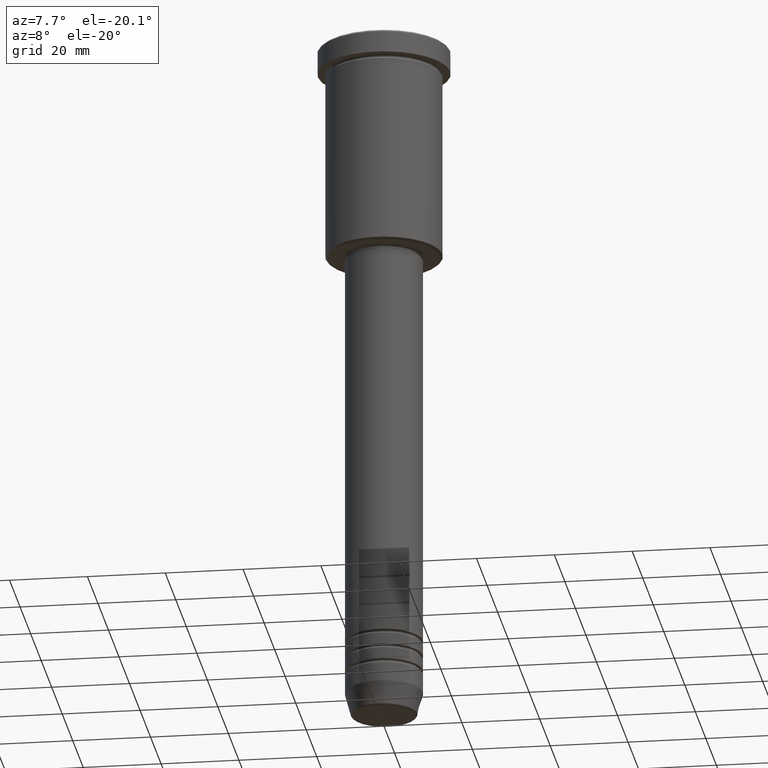
[diagram: clean part render]
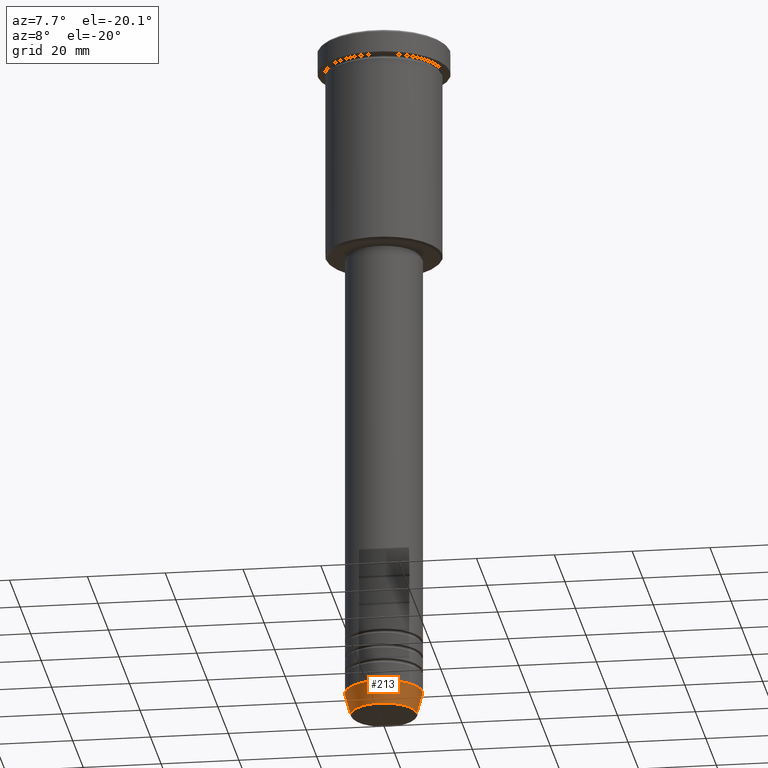
[diagram: same view with one face highlighted and labeled with its STEP entity id]
A machine part, auxiliary view. The second image highlights one B-rep face of the part: STEP entity #213.
In plain terms, the highlighted conical surface has half-angle 15 deg.
Its self-contained STEP definition (entity closure, byte-faithful):
#49 = CARTESIAN_POINT ( 'NONE',  ( 0.000000000000000000, 0.000000000000000000, -179.6294095225512422 ) ) ;
#57 = VERTEX_POINT ( 'NONE', #543 ) ;
#69 = DIRECTION ( 'NONE',  ( -0.000000000000000000, -0.000000000000000000, 1.000000000000000000 ) ) ;
#146 = VECTOR ( 'NONE', #1012, 1000.000000000000000 ) ;
#148 = CARTESIAN_POINT ( 'NONE',  ( 10.00000000000000178, 0.000000000000000000, -174.0000000000000284 ) ) ;
#183 = CIRCLE ( 'NONE', #1063, 8.491604264568326954 ) ;
#193 = EDGE_CURVE ( 'NONE', #443, #246, #378, .T. ) ;
#212 = DIRECTION ( 'NONE',  ( -0.000000000000000000, -0.000000000000000000, 1.000000000000000000 ) ) ;
#213 = ADVANCED_FACE ( 'NONE', ( #567 ), #376, .T. ) ;
#246 = VERTEX_POINT ( 'NONE', #876 ) ;
#316 = AXIS2_PLACEMENT_3D ( 'NONE', #976, #212, #318 ) ;
#318 = DIRECTION ( 'NONE',  ( 1.000000000000000000, 0.000000000000000000, 0.000000000000000000 ) ) ;
#328 = ORIENTED_EDGE ( 'NONE', *, *, #810, .F. ) ;
#376 = CONICAL_SURFACE ( 'NONE', #316, 10.00000000000000178, 0.2617993877991501850 ) ;
#378 = LINE ( 'NONE', #737, #1085 ) ;
#385 = LINE ( 'NONE', #743, #146 ) ;
#443 = VERTEX_POINT ( 'NONE', #1081 ) ;
#534 = ORIENTED_EDGE ( 'NONE', *, *, #1079, .T. ) ;
#543 = CARTESIAN_POINT ( 'NONE',  ( 8.491604264568326954, 0.000000000000000000, -179.6294095225512422 ) ) ;
#567 = FACE_OUTER_BOUND ( 'NONE', #805, .T. ) ;
#591 = ORIENTED_EDGE ( 'NONE', *, *, #193, .F. ) ;
#594 = DIRECTION ( 'NONE',  ( -0.000000000000000000, -0.000000000000000000, 1.000000000000000000 ) ) ;
#707 = EDGE_CURVE ( 'NONE', #443, #57, #183, .T. ) ;
#737 = CARTESIAN_POINT ( 'NONE',  ( -10.00000000000000178, 1.224646799147353454E-15, -174.0000000000000284 ) ) ;
#743 = CARTESIAN_POINT ( 'NONE',  ( 10.00000000000000178, 0.000000000000000000, -174.0000000000000284 ) ) ;
#746 = VERTEX_POINT ( 'NONE', #148 ) ;
#805 = EDGE_LOOP ( 'NONE', ( #591, #1067, #534, #328 ) ) ;
#810 = EDGE_CURVE ( 'NONE', #246, #746, #1008, .T. ) ;
#840 = AXIS2_PLACEMENT_3D ( 'NONE', #1163, #69, #1080 ) ;
#868 = DIRECTION ( 'NONE',  ( 1.000000000000000000, 0.000000000000000000, 0.000000000000000000 ) ) ;
#876 = CARTESIAN_POINT ( 'NONE',  ( -10.00000000000000178, 1.224646799147353454E-15, -174.0000000000000284 ) ) ;
#938 = DIRECTION ( 'NONE',  ( -0.2588190451025214611, 3.169619151431773569E-17, 0.9659258262890680902 ) ) ;
#976 = CARTESIAN_POINT ( 'NONE',  ( 0.000000000000000000, 0.000000000000000000, -174.0000000000000284 ) ) ;
#1008 = CIRCLE ( 'NONE', #840, 10.00000000000000178 ) ;
#1012 = DIRECTION ( 'NONE',  ( 0.2588190451025214611, 0.000000000000000000, 0.9659258262890680902 ) ) ;
#1063 = AXIS2_PLACEMENT_3D ( 'NONE', #49, #594, #868 ) ;
#1067 = ORIENTED_EDGE ( 'NONE', *, *, #707, .T. ) ;
#1079 = EDGE_CURVE ( 'NONE', #57, #746, #385, .T. ) ;
#1080 = DIRECTION ( 'NONE',  ( 1.000000000000000000, 0.000000000000000000, 0.000000000000000000 ) ) ;
#1081 = CARTESIAN_POINT ( 'NONE',  ( -8.491604264568326954, 1.132284198685157767E-15, -179.6294095225512422 ) ) ;
#1085 = VECTOR ( 'NONE', #938, 1000.000000000000000 ) ;
#1163 = CARTESIAN_POINT ( 'NONE',  ( 0.000000000000000000, 0.000000000000000000, -174.0000000000000284 ) ) ;